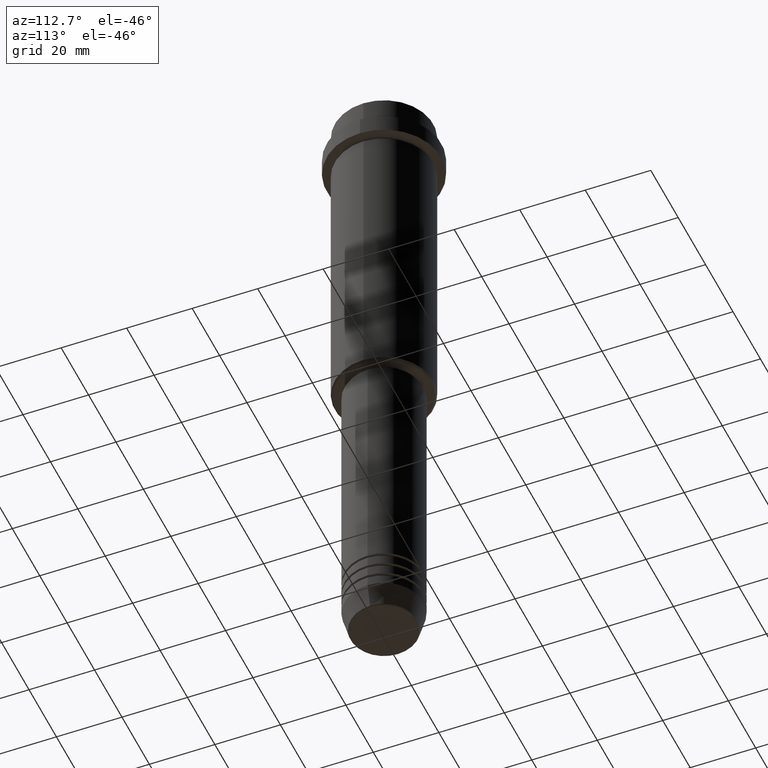
[diagram: clean part render]
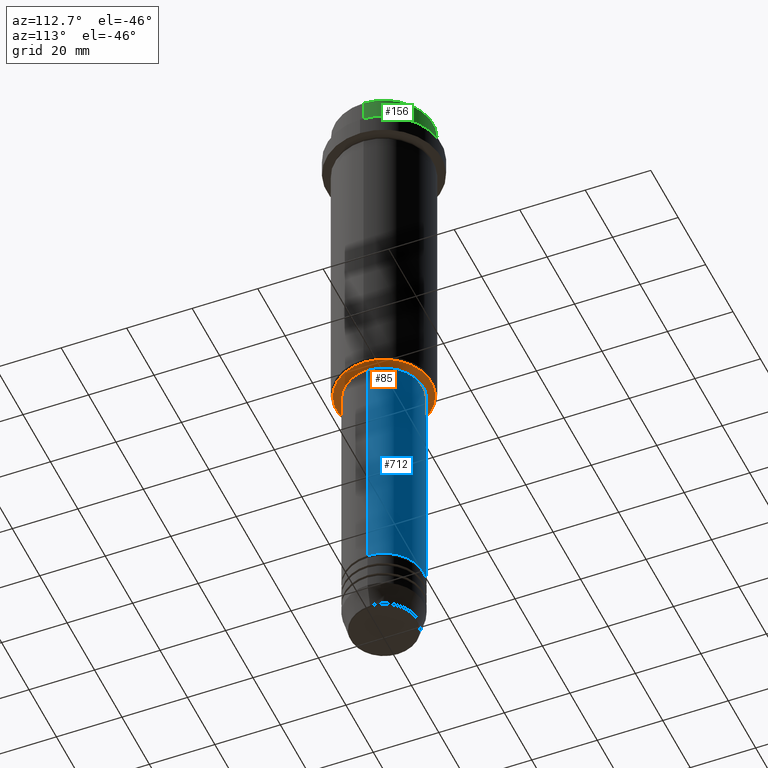
[diagram: same view with three faces highlighted in distinct colors, each labeled with its STEP entity id]
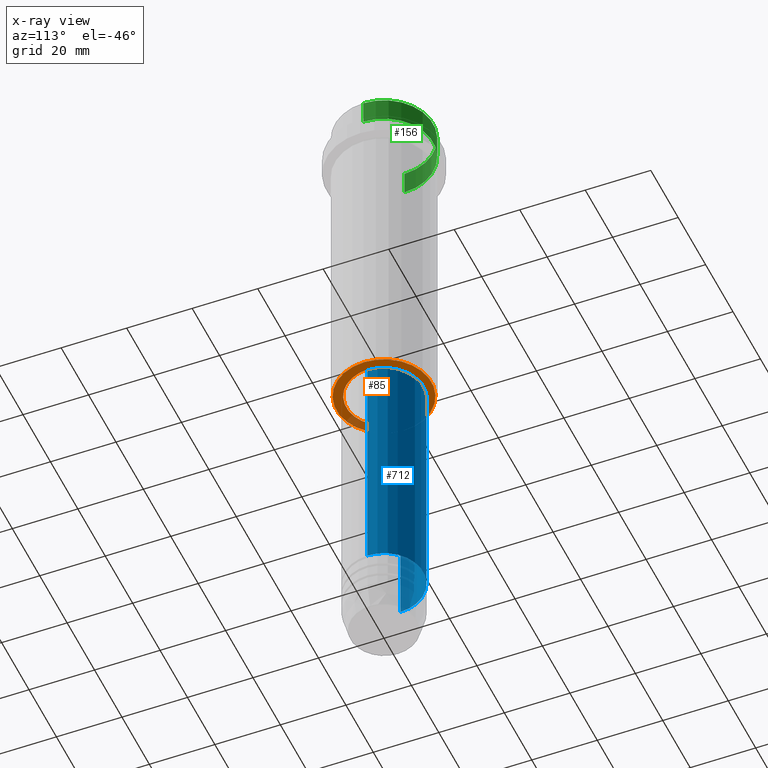
[diagram: x-ray of the same camera — body ghosted, the three highlighted faces saturated]
A machine part, auxiliary view with three faces highlighted in distinct colors.
The next image is the same camera in x-ray (body ghosted, the three faces saturated) — at least one of them is partly hidden behind the body in this view.
Their STEP definitions:

[orange] entity #85 — the highlighted planar face has unit normal (0, 0, -1).
#17 = CARTESIAN_POINT ( 'NONE',  ( -11.49999999999999467, 1.408343819019455781E-15, -105.0000000000000142 ) ) ;
#19 = VERTEX_POINT ( 'NONE', #490 ) ;
#85 = ADVANCED_FACE ( 'NONE', ( #1111, #458 ), #133, .T. ) ;
#113 = EDGE_LOOP ( 'NONE', ( #877, #766 ) ) ;
#117 = EDGE_CURVE ( 'NONE', #263, #444, #234, .T. ) ;
#133 = PLANE ( 'NONE',  #526 ) ;
#226 = CARTESIAN_POINT ( 'NONE',  ( 0.000000000000000000, 0.000000000000000000, -105.0000000000000142 ) ) ;
#234 = CIRCLE ( 'NONE', #798, 11.49999999999999467 ) ;
#263 = VERTEX_POINT ( 'NONE', #17 ) ;
#297 = CIRCLE ( 'NONE', #943, 14.50000000000001066 ) ;
#298 = AXIS2_PLACEMENT_3D ( 'NONE', #788, #759, #644 ) ;
#337 = CARTESIAN_POINT ( 'NONE',  ( 0.000000000000000000, 15.00000000000000000, -105.0000000000000142 ) ) ;
#361 = CARTESIAN_POINT ( 'NONE',  ( 0.000000000000000000, 0.000000000000000000, -105.0000000000000142 ) ) ;
#415 = AXIS2_PLACEMENT_3D ( 'NONE', #226, #638, #470 ) ;
#444 = VERTEX_POINT ( 'NONE', #579 ) ;
#458 = FACE_BOUND ( 'NONE', #113, .T. ) ;
#470 = DIRECTION ( 'NONE',  ( 1.000000000000000000, 0.000000000000000000, 0.000000000000000000 ) ) ;
#490 = CARTESIAN_POINT ( 'NONE',  ( 14.50000000000001066, 0.000000000000000000, -105.0000000000000142 ) ) ;
#507 = ORIENTED_EDGE ( 'NONE', *, *, #934, .T. ) ;
#526 = AXIS2_PLACEMENT_3D ( 'NONE', #337, #881, #903 ) ;
#579 = CARTESIAN_POINT ( 'NONE',  ( 11.49999999999999467, 0.000000000000000000, -105.0000000000000142 ) ) ;
#631 = CIRCLE ( 'NONE', #415, 11.49999999999999467 ) ;
#638 = DIRECTION ( 'NONE',  ( -0.000000000000000000, -0.000000000000000000, 1.000000000000000000 ) ) ;
#644 = DIRECTION ( 'NONE',  ( -1.000000000000000000, 0.000000000000000000, 0.000000000000000000 ) ) ;
#715 = VERTEX_POINT ( 'NONE', #1199 ) ;
#759 = DIRECTION ( 'NONE',  ( 0.000000000000000000, 0.000000000000000000, -1.000000000000000000 ) ) ;
#766 = ORIENTED_EDGE ( 'NONE', *, *, #117, .T. ) ;
#785 = DIRECTION ( 'NONE',  ( -1.000000000000000000, 0.000000000000000000, 0.000000000000000000 ) ) ;
#788 = CARTESIAN_POINT ( 'NONE',  ( 0.000000000000000000, 0.000000000000000000, -105.0000000000000142 ) ) ;
#798 = AXIS2_PLACEMENT_3D ( 'NONE', #1013, #909, #1340 ) ;
#873 = CIRCLE ( 'NONE', #298, 14.50000000000001066 ) ;
#877 = ORIENTED_EDGE ( 'NONE', *, *, #1173, .T. ) ;
#881 = DIRECTION ( 'NONE',  ( 0.000000000000000000, 0.000000000000000000, -1.000000000000000000 ) ) ;
#903 = DIRECTION ( 'NONE',  ( -1.000000000000000000, 0.000000000000000000, -0.000000000000000000 ) ) ;
#909 = DIRECTION ( 'NONE',  ( -0.000000000000000000, -0.000000000000000000, 1.000000000000000000 ) ) ;
#934 = EDGE_CURVE ( 'NONE', #19, #715, #297, .T. ) ;
#943 = AXIS2_PLACEMENT_3D ( 'NONE', #361, #1019, #785 ) ;
#996 = EDGE_LOOP ( 'NONE', ( #507, #1104 ) ) ;
#1013 = CARTESIAN_POINT ( 'NONE',  ( 0.000000000000000000, 0.000000000000000000, -105.0000000000000142 ) ) ;
#1019 = DIRECTION ( 'NONE',  ( 0.000000000000000000, 0.000000000000000000, -1.000000000000000000 ) ) ;
#1104 = ORIENTED_EDGE ( 'NONE', *, *, #1166, .T. ) ;
#1111 = FACE_OUTER_BOUND ( 'NONE', #996, .T. ) ;
#1166 = EDGE_CURVE ( 'NONE', #715, #19, #873, .T. ) ;
#1173 = EDGE_CURVE ( 'NONE', #444, #263, #631, .T. ) ;
#1199 = CARTESIAN_POINT ( 'NONE',  ( -14.50000000000001066, 1.806354028742346591E-15, -105.0000000000000142 ) ) ;
#1340 = DIRECTION ( 'NONE',  ( 1.000000000000000000, 0.000000000000000000, 0.000000000000000000 ) ) ;

[blue] entity #712 — the highlighted cylindrical surface (partial cylindrical patch) has radius 12 mm, axis along (-0, -0, 1).
#18 = DIRECTION ( 'NONE',  ( -0.000000000000000000, -0.000000000000000000, 1.000000000000000000 ) ) ;
#43 = CARTESIAN_POINT ( 'NONE',  ( -11.99999999999999822, 1.469576158976823750E-15, -106.0000000000000142 ) ) ;
#110 = EDGE_CURVE ( 'NONE', #921, #467, #1220, .T. ) ;
#139 = DIRECTION ( 'NONE',  ( -0.000000000000000000, -0.000000000000000000, 1.000000000000000000 ) ) ;
#220 = DIRECTION ( 'NONE',  ( 1.000000000000000000, 0.000000000000000000, 0.000000000000000000 ) ) ;
#232 = CARTESIAN_POINT ( 'NONE',  ( 0.000000000000000000, 0.000000000000000000, -106.0000000000000142 ) ) ;
#236 = AXIS2_PLACEMENT_3D ( 'NONE', #232, #1345, #1216 ) ;
#238 = EDGE_CURVE ( 'NONE', #1025, #342, #835, .T. ) ;
#287 = ORIENTED_EDGE ( 'NONE', *, *, #449, .F. ) ;
#342 = VERTEX_POINT ( 'NONE', #1008 ) ;
#357 = ORIENTED_EDGE ( 'NONE', *, *, #238, .F. ) ;
#409 = DIRECTION ( 'NONE',  ( 1.000000000000000000, 0.000000000000000000, 0.000000000000000000 ) ) ;
#416 = VECTOR ( 'NONE', #1044, 1000.000000000000000 ) ;
#449 = EDGE_CURVE ( 'NONE', #342, #467, #1401, .T. ) ;
#460 = EDGE_LOOP ( 'NONE', ( #1026, #721, #287, #357 ) ) ;
#463 = CARTESIAN_POINT ( 'NONE',  ( -12.00000000000000000, 1.469576158976823947E-15, 0.000000000000000000 ) ) ;
#467 = VERTEX_POINT ( 'NONE', #43 ) ;
#489 = CARTESIAN_POINT ( 'NONE',  ( -12.00000000000000000, 1.469576158976823947E-15, -180.9999999999998863 ) ) ;
#551 = CARTESIAN_POINT ( 'NONE',  ( 0.000000000000000000, 0.000000000000000000, 0.000000000000000000 ) ) ;
#704 = VECTOR ( 'NONE', #139, 1000.000000000000000 ) ;
#712 = ADVANCED_FACE ( 'NONE', ( #770 ), #1321, .T. ) ;
#721 = ORIENTED_EDGE ( 'NONE', *, *, #110, .T. ) ;
#770 = FACE_OUTER_BOUND ( 'NONE', #460, .T. ) ;
#797 = AXIS2_PLACEMENT_3D ( 'NONE', #1177, #1385, #409 ) ;
#803 = AXIS2_PLACEMENT_3D ( 'NONE', #551, #18, #220 ) ;
#835 = LINE ( 'NONE', #1156, #416 ) ;
#921 = VERTEX_POINT ( 'NONE', #489 ) ;
#1007 = EDGE_CURVE ( 'NONE', #1025, #921, #1099, .T. ) ;
#1008 = CARTESIAN_POINT ( 'NONE',  ( 11.99999999999999822, 0.000000000000000000, -106.0000000000000142 ) ) ;
#1025 = VERTEX_POINT ( 'NONE', #1277 ) ;
#1026 = ORIENTED_EDGE ( 'NONE', *, *, #1007, .T. ) ;
#1044 = DIRECTION ( 'NONE',  ( -0.000000000000000000, -0.000000000000000000, 1.000000000000000000 ) ) ;
#1099 = CIRCLE ( 'NONE', #797, 12.00000000000000000 ) ;
#1156 = CARTESIAN_POINT ( 'NONE',  ( 12.00000000000000000, 0.000000000000000000, 0.000000000000000000 ) ) ;
#1177 = CARTESIAN_POINT ( 'NONE',  ( 0.000000000000000000, 0.000000000000000000, -180.9999999999998863 ) ) ;
#1216 = DIRECTION ( 'NONE',  ( 1.000000000000000000, 0.000000000000000000, 0.000000000000000000 ) ) ;
#1220 = LINE ( 'NONE', #463, #704 ) ;
#1277 = CARTESIAN_POINT ( 'NONE',  ( 12.00000000000000000, 0.000000000000000000, -180.9999999999998863 ) ) ;
#1321 = CYLINDRICAL_SURFACE ( 'NONE', #803, 12.00000000000000000 ) ;
#1345 = DIRECTION ( 'NONE',  ( -0.000000000000000000, -0.000000000000000000, 1.000000000000000000 ) ) ;
#1385 = DIRECTION ( 'NONE',  ( -0.000000000000000000, -0.000000000000000000, 1.000000000000000000 ) ) ;
#1401 = CIRCLE ( 'NONE', #236, 11.99999999999999822 ) ;

[green] entity #156 — the highlighted cylindrical surface (partial cylindrical patch) has radius 15 mm, axis along (-0, -0, 1).
#28 = CARTESIAN_POINT ( 'NONE',  ( 0.000000000000000000, 0.000000000000000000, -7.999999999999998224 ) ) ;
#56 = ORIENTED_EDGE ( 'NONE', *, *, #979, .T. ) ;
#65 = CARTESIAN_POINT ( 'NONE',  ( 0.000000000000000000, 0.000000000000000000, -0.5000000000000108802 ) ) ;
#71 = AXIS2_PLACEMENT_3D ( 'NONE', #953, #1254, #1382 ) ;
#94 = EDGE_CURVE ( 'NONE', #654, #780, #1183, .T. ) ;
#99 = LINE ( 'NONE', #1085, #168 ) ;
#111 = ORIENTED_EDGE ( 'NONE', *, *, #94, .T. ) ;
#156 = ADVANCED_FACE ( 'NONE', ( #731 ), #512, .T. ) ;
#168 = VECTOR ( 'NONE', #531, 1000.000000000000000 ) ;
#303 = CARTESIAN_POINT ( 'NONE',  ( -15.00000000000000000, 1.836970198721029589E-15, 0.000000000000000000 ) ) ;
#328 = ORIENTED_EDGE ( 'NONE', *, *, #1242, .F. ) ;
#370 = VECTOR ( 'NONE', #733, 1000.000000000000000 ) ;
#512 = CYLINDRICAL_SURFACE ( 'NONE', #71, 15.00000000000000000 ) ;
#531 = DIRECTION ( 'NONE',  ( -0.000000000000000000, -0.000000000000000000, 1.000000000000000000 ) ) ;
#537 = CARTESIAN_POINT ( 'NONE',  ( 15.00000000000000000, 0.000000000000000000, -0.5000000000000108802 ) ) ;
#654 = VERTEX_POINT ( 'NONE', #918 ) ;
#725 = AXIS2_PLACEMENT_3D ( 'NONE', #28, #1315, #896 ) ;
#726 = DIRECTION ( 'NONE',  ( 1.000000000000000000, 0.000000000000000000, 0.000000000000000000 ) ) ;
#731 = FACE_OUTER_BOUND ( 'NONE', #936, .T. ) ;
#733 = DIRECTION ( 'NONE',  ( -0.000000000000000000, -0.000000000000000000, 1.000000000000000000 ) ) ;
#780 = VERTEX_POINT ( 'NONE', #1317 ) ;
#808 = VERTEX_POINT ( 'NONE', #537 ) ;
#850 = LINE ( 'NONE', #303, #370 ) ;
#896 = DIRECTION ( 'NONE',  ( 1.000000000000000000, 0.000000000000000000, 0.000000000000000000 ) ) ;
#918 = CARTESIAN_POINT ( 'NONE',  ( 15.00000000000000000, 0.000000000000000000, -7.999999999999998224 ) ) ;
#936 = EDGE_LOOP ( 'NONE', ( #111, #1372, #56, #328 ) ) ;
#953 = CARTESIAN_POINT ( 'NONE',  ( 0.000000000000000000, 0.000000000000000000, 0.000000000000000000 ) ) ;
#979 = EDGE_CURVE ( 'NONE', #1198, #808, #1210, .T. ) ;
#986 = CARTESIAN_POINT ( 'NONE',  ( -15.00000000000000000, 1.836970198721029589E-15, -0.5000000000000108802 ) ) ;
#1060 = DIRECTION ( 'NONE',  ( 0.000000000000000000, 0.000000000000000000, -1.000000000000000000 ) ) ;
#1085 = CARTESIAN_POINT ( 'NONE',  ( 15.00000000000000000, 0.000000000000000000, 0.000000000000000000 ) ) ;
#1098 = EDGE_CURVE ( 'NONE', #780, #1198, #850, .T. ) ;
#1118 = AXIS2_PLACEMENT_3D ( 'NONE', #65, #1060, #726 ) ;
#1183 = CIRCLE ( 'NONE', #725, 15.00000000000000000 ) ;
#1198 = VERTEX_POINT ( 'NONE', #986 ) ;
#1210 = CIRCLE ( 'NONE', #1118, 15.00000000000000000 ) ;
#1242 = EDGE_CURVE ( 'NONE', #654, #808, #99, .T. ) ;
#1254 = DIRECTION ( 'NONE',  ( -0.000000000000000000, -0.000000000000000000, 1.000000000000000000 ) ) ;
#1315 = DIRECTION ( 'NONE',  ( -0.000000000000000000, -0.000000000000000000, 1.000000000000000000 ) ) ;
#1317 = CARTESIAN_POINT ( 'NONE',  ( -15.00000000000000000, 1.836970198721029589E-15, -7.999999999999998224 ) ) ;
#1372 = ORIENTED_EDGE ( 'NONE', *, *, #1098, .T. ) ;
#1382 = DIRECTION ( 'NONE',  ( 1.000000000000000000, 0.000000000000000000, 0.000000000000000000 ) ) ;